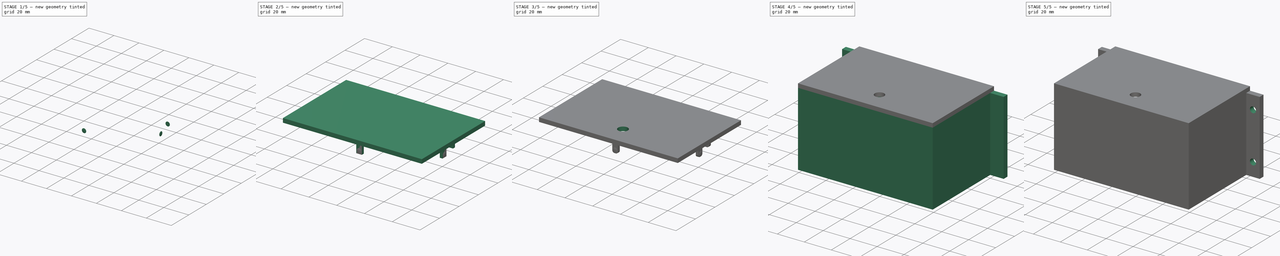
[diagram: build sequence overview — one tinted view per stage of 5, left to right]
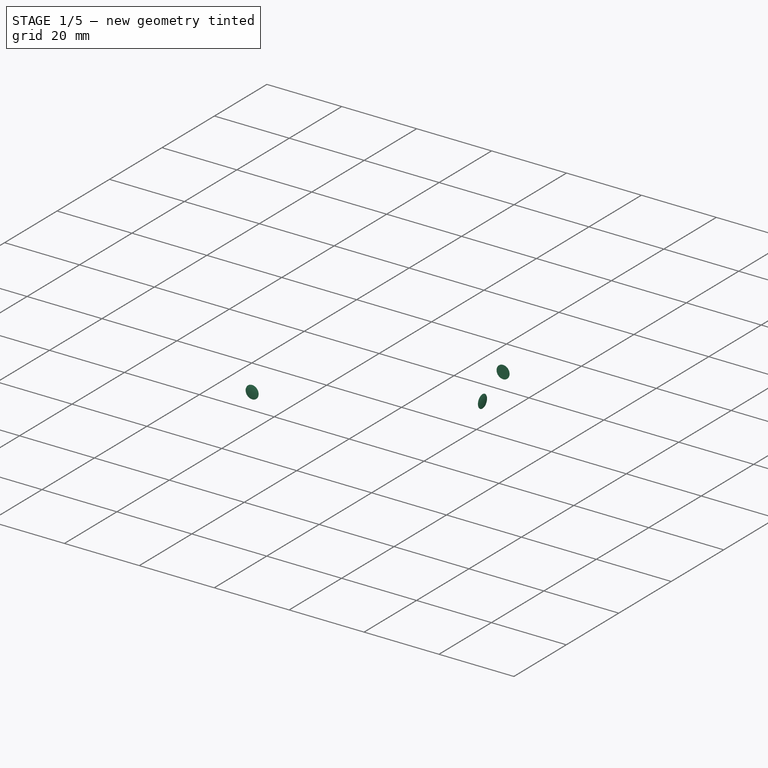
[diagram: stage 1 of 5 — iso view after this stage's code; geometry added in this stage tinted green]
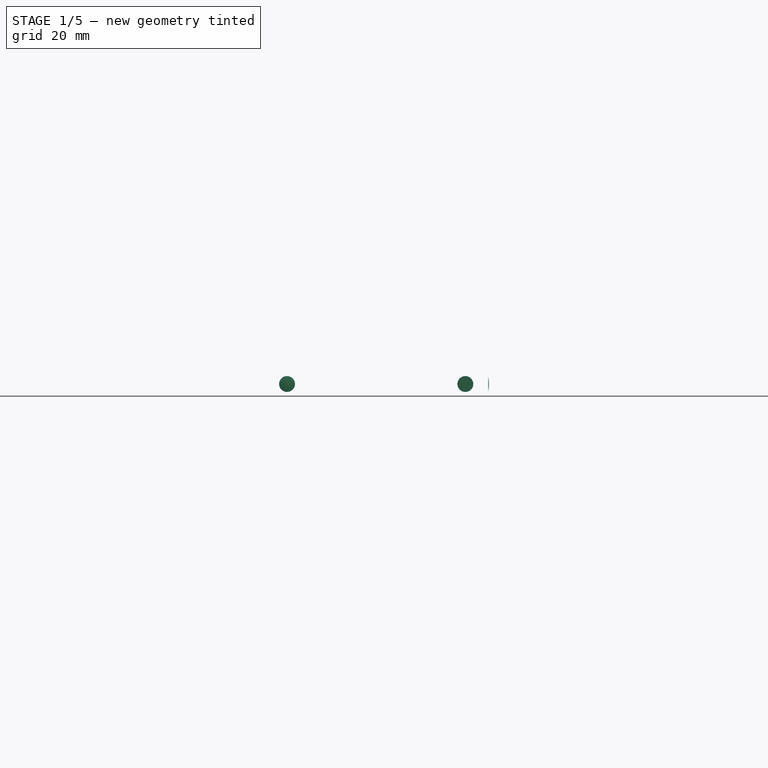
[diagram: stage 1 of 5 — front view after this stage's code; geometry added in this stage tinted green]
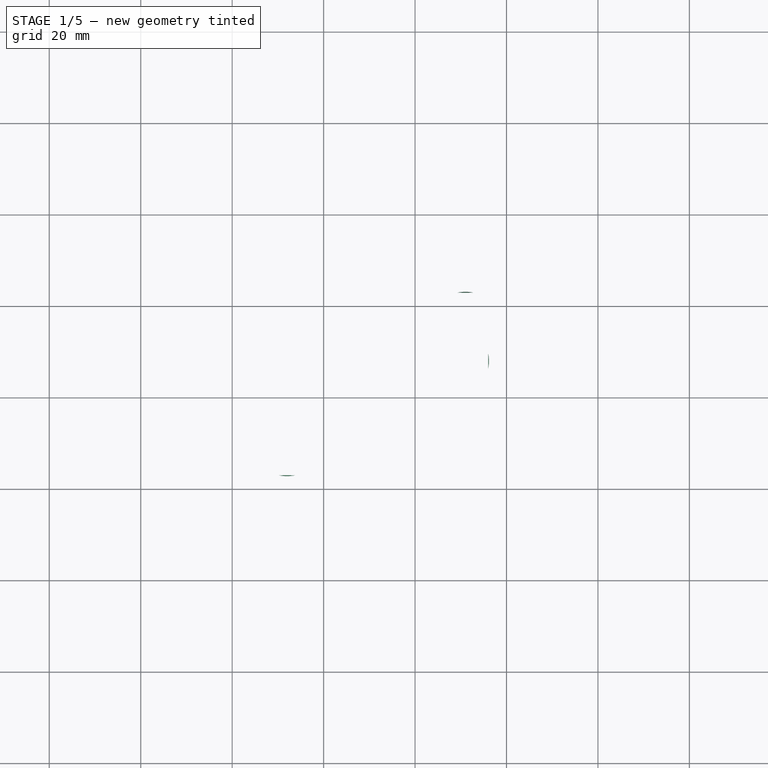
[diagram: stage 1 of 5 — top view after this stage's code; geometry added in this stage tinted green]
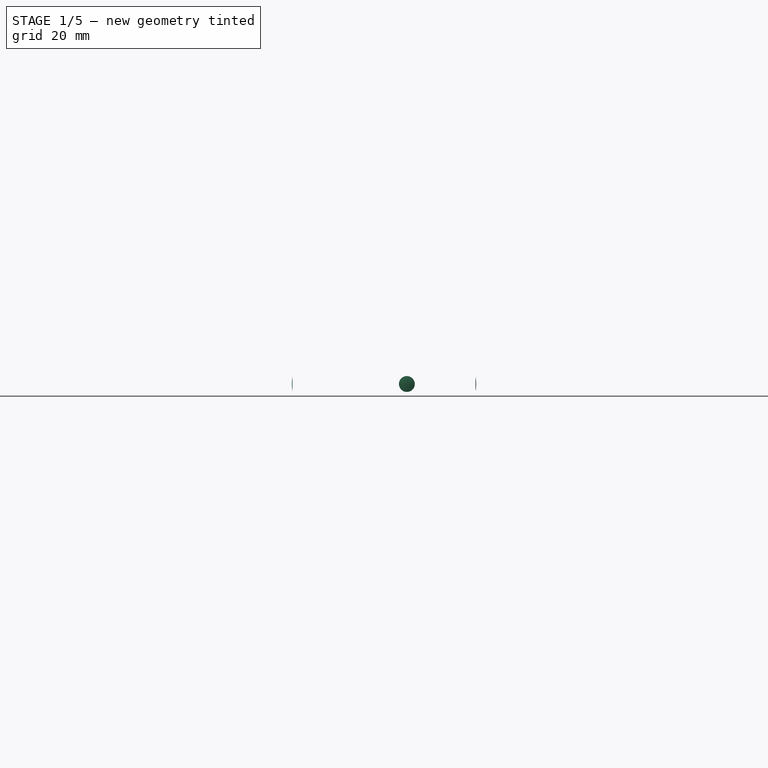
[diagram: stage 1 of 5 — right view after this stage's code; geometry added in this stage tinted green]
FCSTD DOCUMENT  (FreeCAD 0.21R33668 +26 (Git))
Label: TapWaterThermostatBox
License: All rights reserved
LicenseURL: https://en.wikipedia.org/wiki/All_rights_reserved
objects: Sketcher::SketchObject×10, PartDesign::Pad×5, PartDesign::Pocket×4, Part::Sphere×4, PartDesign::Body×2, Spreadsheet::Sheet×1, PartDesign::Hole×1, PartDesign::Plane×1, PartDesign::Boolean×1, PartDesign::Fillet×1
note: 40 computed .brp shape members not serialized (recipe doc carries the construction recipe); baked Part::Feature solids carry a one-line shape summary decoded from their .brp

FEATURE [Part::Sphere] Sphere001
  Angle1 = 80
  Angle2 = 90
  Angle3 = 360
  AttacherType = Attacher::AttachEngine3D
  Placement = pos=(52,-47.1519,44) rot=(0.57735,-0.57735,0.57735;2.0944rad)
  Radius = 10
FEATURE [Part::Sphere] Sphere002
  Angle1 = 80
  Angle2 = 90
  Angle3 = 360
  AttacherType = Attacher::AttachEngine3D
  Placement = pos=(86.1519,-32,44) rot=(0,1,0;1.5708rad)
  Radius = 10
FEATURE [Part::Sphere] Sphere003
  Angle1 = 80
  Angle2 = 90
  Angle3 = 360
  AttacherType = Attacher::AttachEngine3D
  Placement = pos=(91,-26.8481,44) rot=(0.57735,0.57735,0.57735;4.18879rad)
  Radius = 10
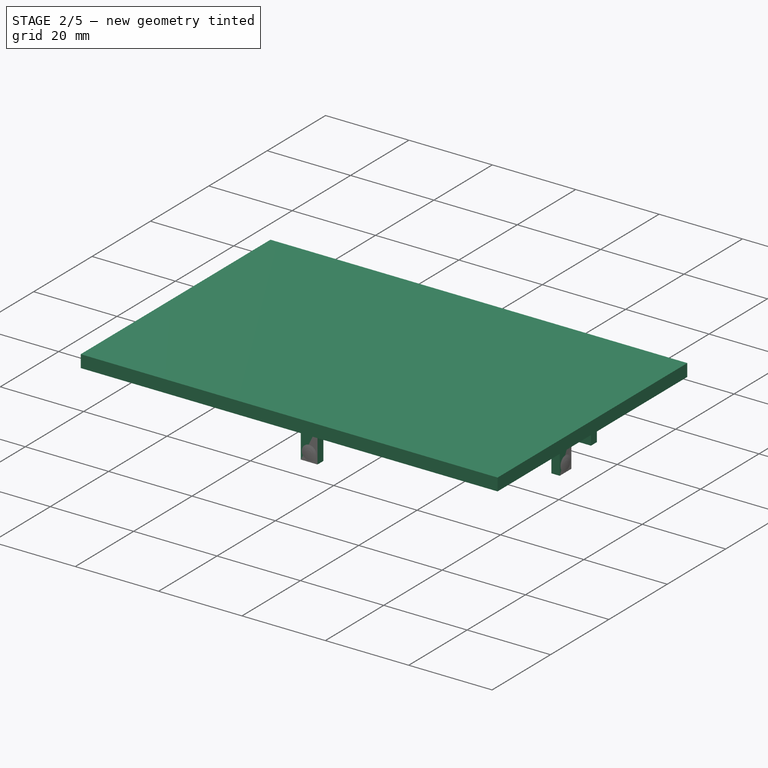
[diagram: stage 2 of 5 — iso view after this stage's code; geometry added in this stage tinted green]
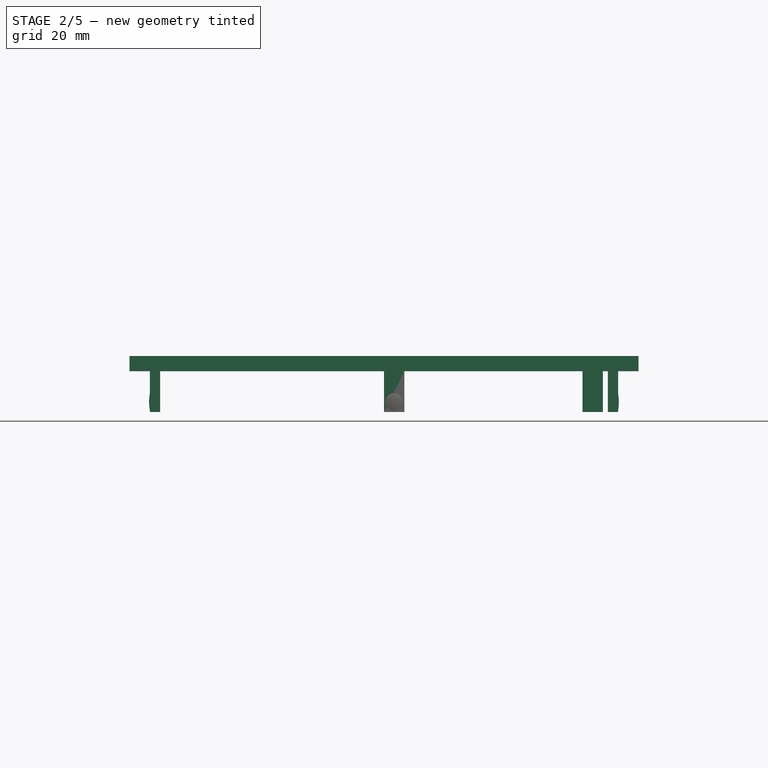
[diagram: stage 2 of 5 — front view after this stage's code; geometry added in this stage tinted green]
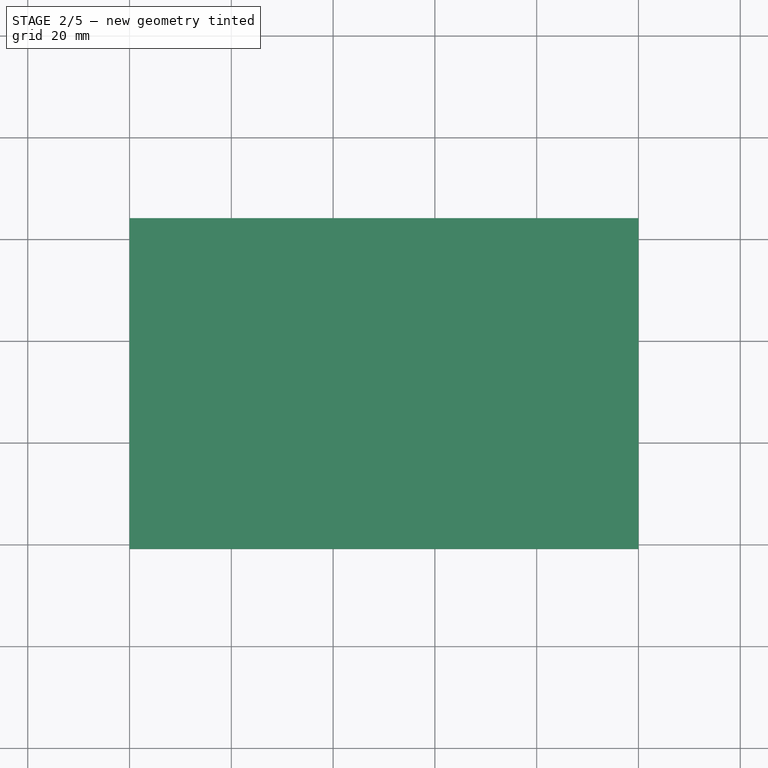
[diagram: stage 2 of 5 — top view after this stage's code; geometry added in this stage tinted green]
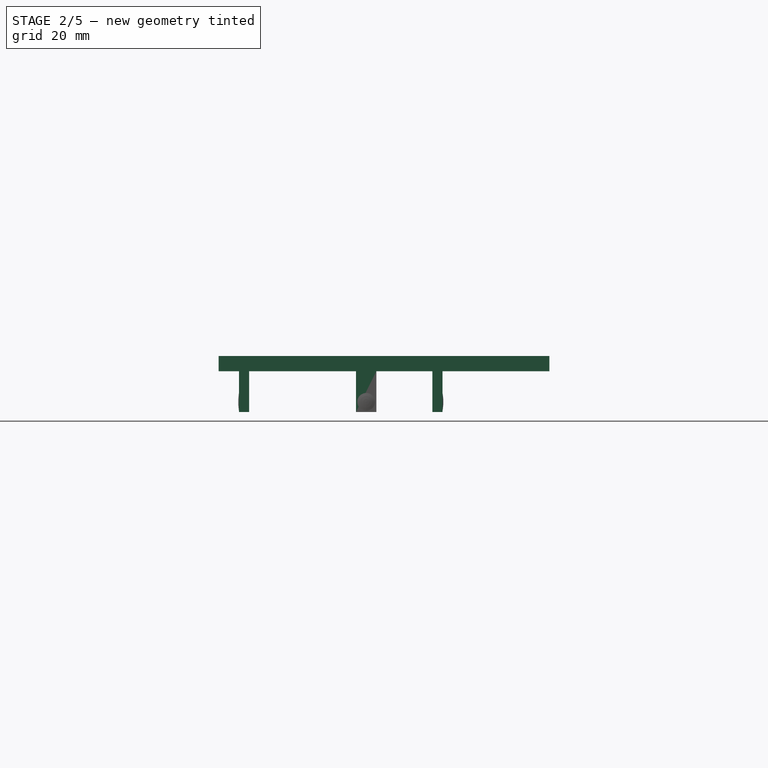
[diagram: stage 2 of 5 — right view after this stage's code; geometry added in this stage tinted green]
FEATURE [PartDesign::Plane] DatumPlane
  AttachmentOffset = pos=(0,0,50) rot=(0,0,1;0rad)
  Length = 60
  MapMode = 2
  Placement = pos=(0,0,50) rot=(0,0,1;0rad)
  ResizeMode = 0
  Support = -> [XY_Plane001]
  Width = 60
  expr: .AttachmentOffset.Base.z = Spreadsheet.box_height
FEATURE [Sketcher::SketchObject] Sketch005
  FullyConstrained = true
  MapMode = 5
  Placement = pos=(0,0,50) rot=(0,0,1;0rad)
  Support = -> [DatumPlane]
  expr: Constraints[10] = Spreadsheet.box_width
  expr: Constraints[11] = Spreadsheet.wall_thickness
  expr: Constraints[9] = Spreadsheet.box_depth
  sketch-geometry (4):
    g0: LineSegment StartX=0 StartY=4 StartZ=0 EndX=100 EndY=4 EndZ=0
    g1: LineSegment StartX=100 StartY=4 StartZ=0 EndX=100 EndY=-61 EndZ=0
    g2: LineSegment StartX=100 StartY=-61 StartZ=0 EndX=0 EndY=-61 EndZ=0
    g3: LineSegment StartX=0 StartY=-61 StartZ=0 EndX=0 EndY=4 EndZ=0
  constraints (12):
    c: Coincident(g0,g1)
    c: Coincident(g1,g2)
    c: Coincident(g2,g3)
    c: Coincident(g3,g0)
    c: Horizontal(g0)
    c: Horizontal(g2)
    c: Vertical(g1)
    c: Vertical(g3)
    c: PointOnObject(g0,g-2)
    c: DistanceY(g1,g1) = 65
    c: DistanceX(g2,g2) = 100
    c: DistanceY(g-1,g0) = 4
FEATURE [PartDesign::Pad] Pad002
  Direction = (0,0,1)
  Length = 3
  Length2 = 10
  Placement = pos=(0,0,50) rot=(0,0,1;0rad)
  Profile = -> Sketch005
  ReferenceAxis = -> Sketch005 [N_Axis]
  Type = 0
  expr: Length = Spreadsheet.lid_thickness
FEATURE [Sketcher::SketchObject] Sketch006
  FullyConstrained = true
  MapMode = 5
  Placement = pos=(0,0,50) rot=(0,0,1;0rad)
  Support = -> [DatumPlane]
  expr: Constraints[40] = Spreadsheet.wall_thickness
  expr: Constraints[43] = Spreadsheet.box_width / 2
  expr: Constraints[44] = Spreadsheet.servo_depth
  expr: Constraints[45] = Spreadsheet.box_width - Spreadsheet.wall_thickness - 3 mm
  expr: Constraints[46] = Spreadsheet.box_depth - Spreadsheet.wall_thickness * 2
  expr: Constraints[47] = Spreadsheet.box_width - Spreadsheet.wall_thickness
  sketch-geometry (16):
    g0: LineSegment StartX=4 StartY=-30 StartZ=0 EndX=6 EndY=-30 EndZ=0
    g1: LineSegment StartX=6 StartY=-30 StartZ=0 EndX=6 EndY=-34 EndZ=0
    g2: LineSegment StartX=6 StartY=-34 StartZ=0 EndX=4 EndY=-34 EndZ=0
    g3: LineSegment StartX=4 StartY=-34 StartZ=0 EndX=4 EndY=-30 EndZ=0
    g4: LineSegment StartX=89 StartY=-17 StartZ=0 EndX=93 EndY=-17 EndZ=0
    g5: LineSegment StartX=93 StartY=-17 StartZ=0 EndX=93 EndY=-19 EndZ=0
    g6: LineSegment StartX=93 StartY=-19 StartZ=0 EndX=89 EndY=-19 EndZ=0
    g7: LineSegment StartX=89 StartY=-19 StartZ=0 EndX=89 EndY=-17 EndZ=0
    g8: LineSegment StartX=96 StartY=-30 StartZ=0 EndX=94 EndY=-30 EndZ=0
    g9: LineSegment StartX=94 StartY=-30 StartZ=0 EndX=94 EndY=-34 EndZ=0
    g10: LineSegment StartX=94 StartY=-34 StartZ=0 EndX=96 EndY=-34 EndZ=0
    g11: LineSegment StartX=96 StartY=-34 StartZ=0 EndX=96 EndY=-30 EndZ=0
    g12: LineSegment StartX=50 StartY=-57 StartZ=0 EndX=54 EndY=-57 EndZ=0
    g13: LineSegment StartX=54 StartY=-57 StartZ=0 EndX=54 EndY=-55 EndZ=0
    g14: LineSegment StartX=54 StartY=-55 StartZ=0 EndX=50 EndY=-55 EndZ=0
    g15: LineSegment StartX=50 StartY=-55 StartZ=0 EndX=50 EndY=-57 EndZ=0
  constraints (48):
    c: Coincident(g0,g1)
    c: Coincident(g1,g2)
    c: Coincident(g2,g3)
    c: Coincident(g3,g0)
    c: Horizontal(g0)
    c: Horizontal(g2)
    c: Vertical(g1)
    c: Vertical(g3)
    c: Coincident(g4,g5)
    c: Coincident(g5,g6)
    c: Coincident(g6,g7)
    c: Coincident(g7,g4)
    c: Horizontal(g4)
    c: Horizontal(g6)
    c: Vertical(g5)
    c: Vertical(g7)
    c: Coincident(g8,g9)
    c: Coincident(g9,g10)
    c: Coincident(g10,g11)
    c: Coincident(g11,g8)
    c: Horizontal(g8)
    c: Horizontal(g10)
    c: Vertical(g9)
    c: Vertical(g11)
    c: Coincident(g12,g13)
    c: Coincident(g13,g14)
    c: Coincident(g14,g15)
    c: Coincident(g15,g12)
    c: Horizontal(g12)
    c: Horizontal(g14)
    c: Vertical(g13)
    c: Vertical(g15)
    c: Equal(g1,g9)
    c: Equal(g9,g6)
    c: Equal(g6,g12)
    c: Equal(g0,g7)
    c: Equal(g7,g8)
    c: Equal(g8,g15)
    c: DistanceY(g1,g1) = 4
    c: DistanceX(g2,g2) = 2
    c: DistanceX(g-1,g0) = 4
    c: DistanceY(g0,g-1) = 30
    c: DistanceY(g8,g-1) = 30
    c: DistanceX(g-1,g14) = 50
    c: DistanceY(g4,g-1) = 17
    c: DistanceX(g-1,g4) = 93
    c: DistanceY(g12,g-1) = 57
    c: DistanceX(g-1,g8) = 96
FEATURE [PartDesign::Pad] Pad003
  BaseFeature = -> Pad002
  Direction = (0,0,1)
  Length = 8
  Length2 = 10
  Placement = pos=(0,0,50) rot=(0,0,1;0rad)
  Profile = -> Sketch006
  ReferenceAxis = -> Sketch006 [N_Axis]
  Reversed = true
  Type = 0
FEATURE [Part::Sphere] Sphere
  Angle1 = 80
  Angle2 = 90
  Angle3 = 360
  AttacherType = Attacher::AttachEngine3D
  Placement = pos=(13.8481,-32,44) rot=(0,-1,0;1.5708rad)
  Radius = 10
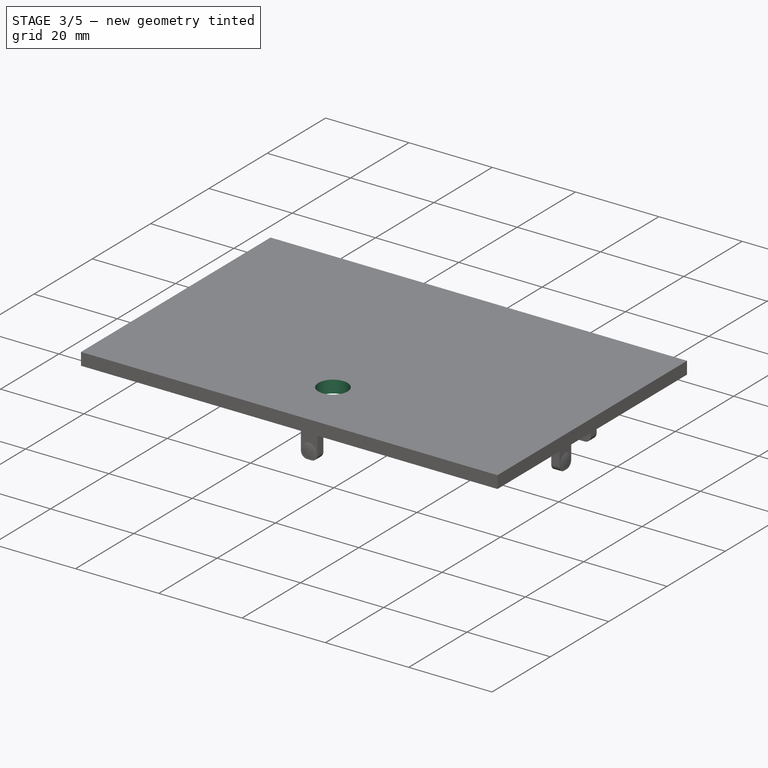
[diagram: stage 3 of 5 — iso view after this stage's code; geometry added in this stage tinted green]
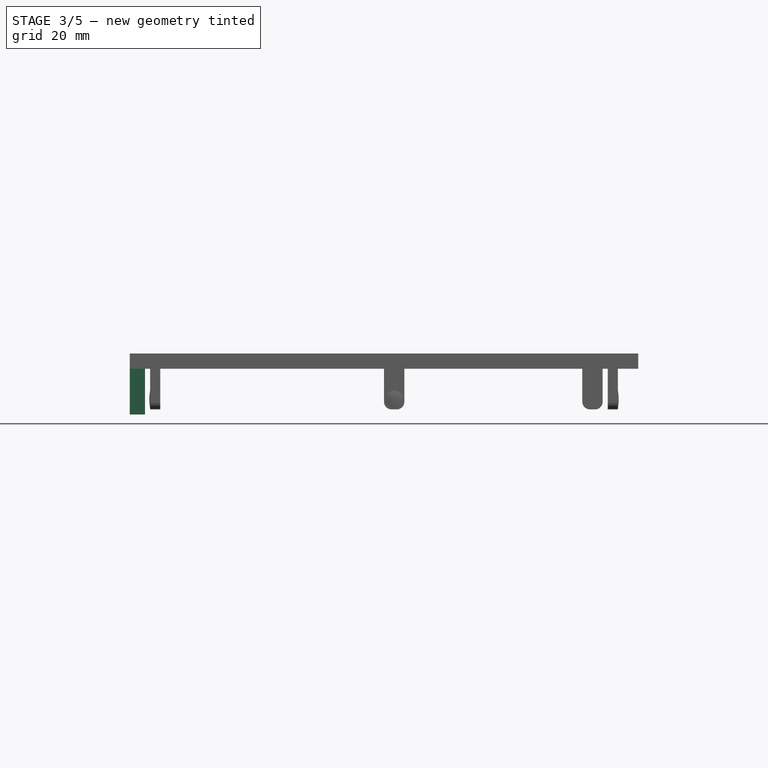
[diagram: stage 3 of 5 — front view after this stage's code; geometry added in this stage tinted green]
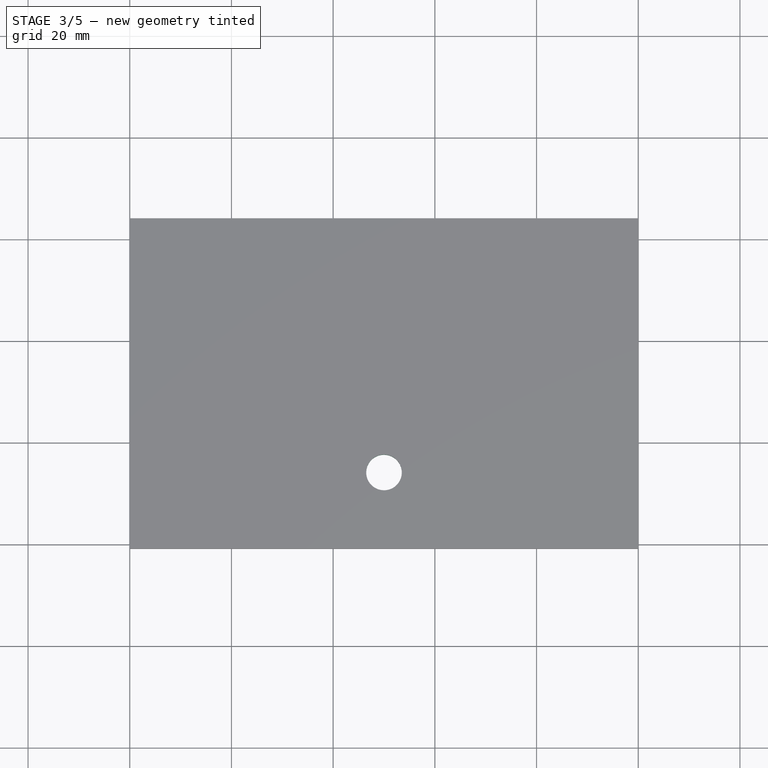
[diagram: stage 3 of 5 — top view after this stage's code; geometry added in this stage tinted green]
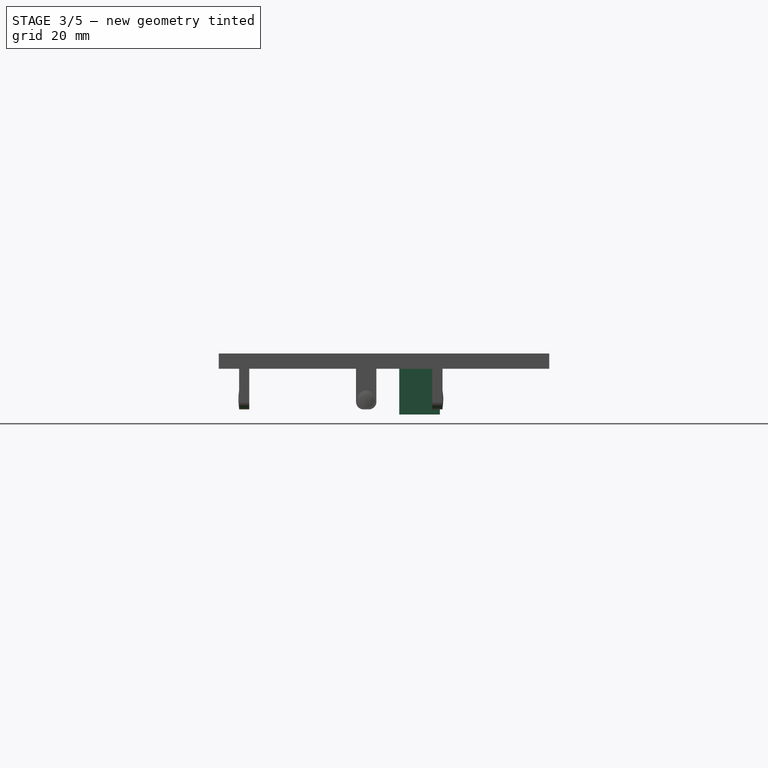
[diagram: stage 3 of 5 — right view after this stage's code; geometry added in this stage tinted green]
FEATURE [Sketcher::SketchObject] Sketch007
  FullyConstrained = true
  MapMode = 5
  Placement = pos=(0,0,50) rot=(0,0,1;0rad)
  Support = -> [DatumPlane]
  expr: Constraints[9] = Spreadsheet.servo_depth + 0.5 mm
  sketch-geometry (4):
    g0: LineSegment StartX=0 StartY=-17.5 StartZ=0 EndX=3 EndY=-17.5 EndZ=0
    g1: LineSegment StartX=3 StartY=-17.5 StartZ=0 EndX=3 EndY=-25.5 EndZ=0
    g2: LineSegment StartX=3 StartY=-25.5 StartZ=0 EndX=0 EndY=-25.5 EndZ=0
    g3: LineSegment StartX=0 StartY=-25.5 StartZ=0 EndX=0 EndY=-17.5 EndZ=0
  constraints (12):
    c: Coincident(g0,g1)
    c: Coincident(g1,g2)
    c: Coincident(g2,g3)
    c: Coincident(g3,g0)
    c: Horizontal(g0)
    c: Horizontal(g2)
    c: Vertical(g1)
    c: Vertical(g3)
    c: PointOnObject(g0,g-2)
    c: DistanceY(g0,g-1) = 17.5
    c: DistanceY(g3,g3) = 8
    c: DistanceX(g2,g2) = 3
FEATURE [PartDesign::Pad] Pad004
  BaseFeature = -> Pad003
  Direction = (0,0,1)
  Length = 9
  Length2 = 10
  Placement = pos=(0,0,50) rot=(0,0,1;0rad)
  Profile = -> Sketch007
  ReferenceAxis = -> Sketch007 [N_Axis]
  Reversed = true
  Type = 0
FEATURE [PartDesign::Boolean] Boolean
  BaseFeature = -> Pad004
  Group = -> [Sphere,Sphere001,Sphere002,Sphere003]
  Type = 0
FEATURE [PartDesign::Fillet] Fillet
  Base = -> Boolean [Edge62,Edge68,Edge77,Edge71,Edge58,Edge56,Edge49,Edge47]
  BaseFeature = -> Boolean
  Radius = 1.5
  SupportTransform = false
  UseAllEdges = false
FEATURE [PartDesign::Body] Body  label="Box"
  Group = -> [Sketch,Pad,Sketch001,Pad001,Sketch002,Pocket,Sketch003,Pocket001,Sketch004,Hole,Sketch008,Pocket002]
  Origin = -> Origin
  Tip = -> Pocket002
FEATURE [Sketcher::SketchObject] Sketch009
  FullyConstrained = true
  MapMode = 5
  Placement = pos=(0,0,50) rot=(0,0,1;0rad)
  Support = -> [DatumPlane]
  expr: Constraints[0] = Spreadsheet.box_width / 2
  expr: Constraints[1] = Spreadsheet.box_depth - Spreadsheet.wall_thickness - 15 mm
  sketch-geometry (1):
    g0: Circle CenterX=50 CenterY=-46 CenterZ=0 NormalX=0 NormalY=0 NormalZ=1 AngleXU=0 Radius=3.5
  constraints (3):
    c: DistanceX(g-1,g0) = 50
    c: DistanceY(g0,g-1) = 46
    c: Diameter(g0) = 7
FEATURE [PartDesign::Pocket] Pocket003
  BaseFeature = -> Fillet
  Direction = (0,0,-1)
  Length = 3
  Length2 = 5
  Profile = -> Sketch009
  ReferenceAxis = -> Sketch009 [N_Axis]
  Reversed = true
  Type = 0
  expr: Length = Spreadsheet.lid_thickness
FEATURE [PartDesign::Body] Body001  label="Lid"
  Group = -> [DatumPlane,Sketch005,Pad002,Sketch006,Pad003,Sketch007,Pad004,Boolean,Fillet,Sketch009,Pocket003]
  Origin = -> Origin001
  Tip = -> Pocket003
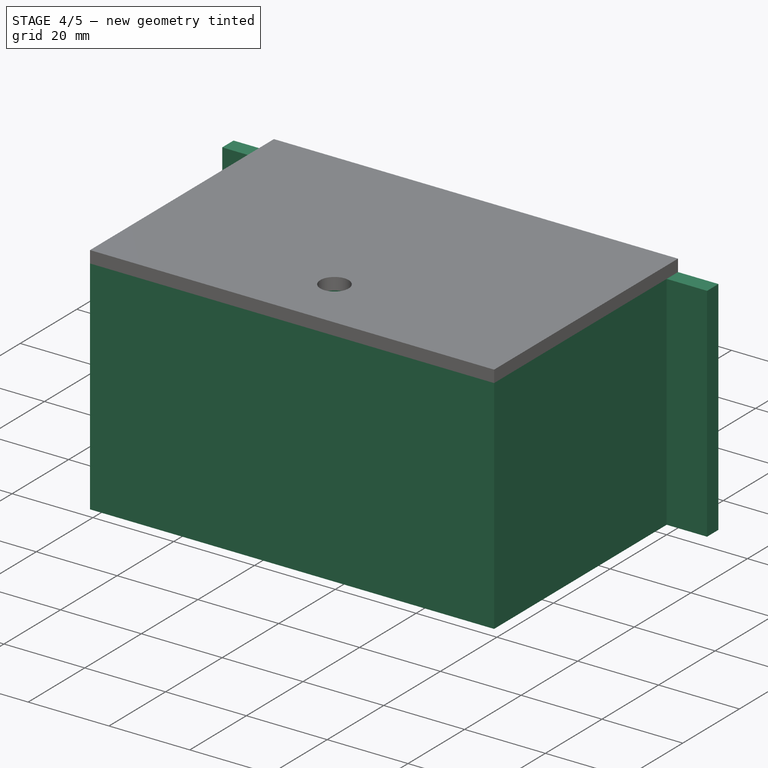
[diagram: stage 4 of 5 — iso view after this stage's code; geometry added in this stage tinted green]
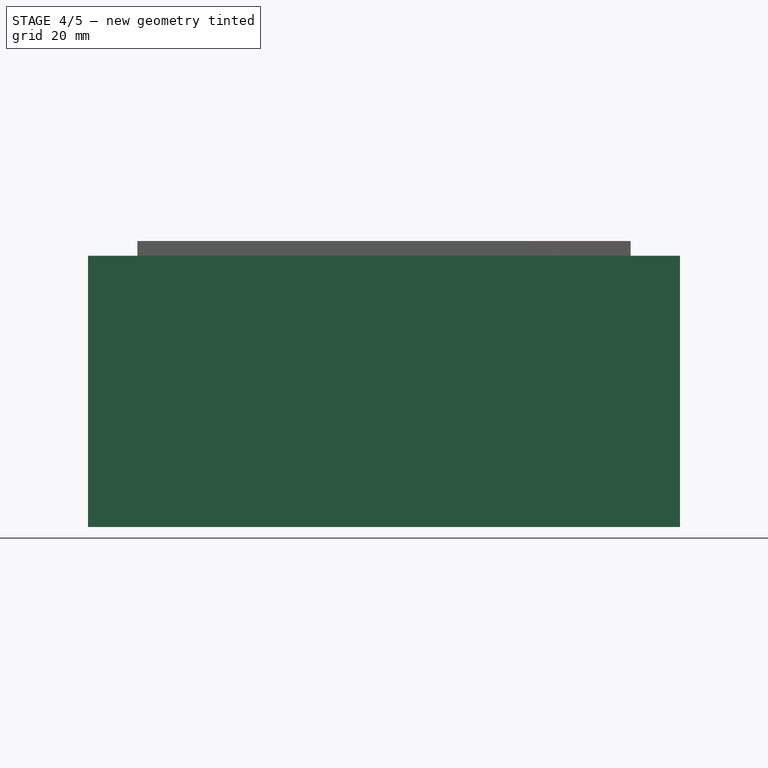
[diagram: stage 4 of 5 — front view after this stage's code; geometry added in this stage tinted green]
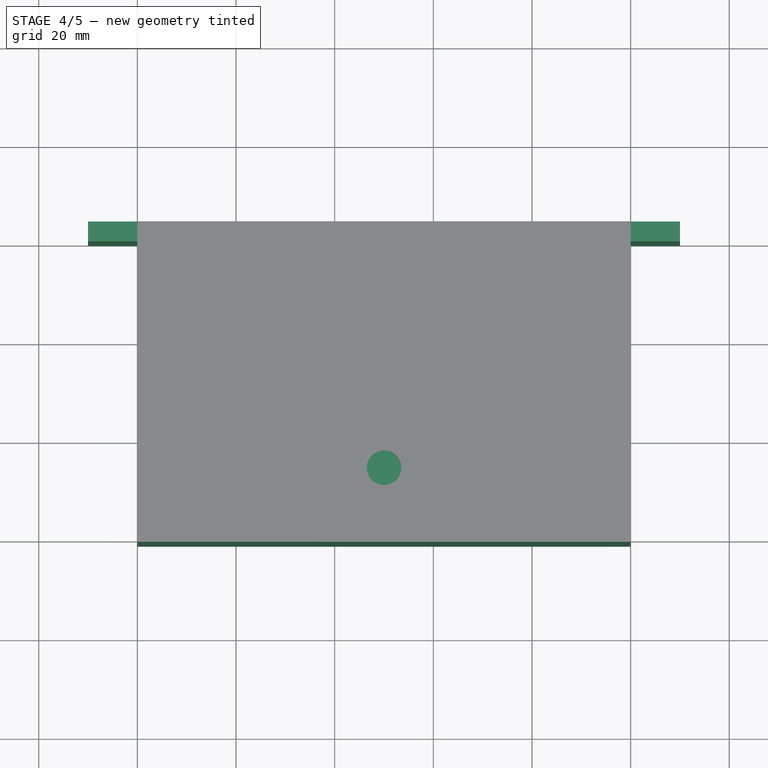
[diagram: stage 4 of 5 — top view after this stage's code; geometry added in this stage tinted green]
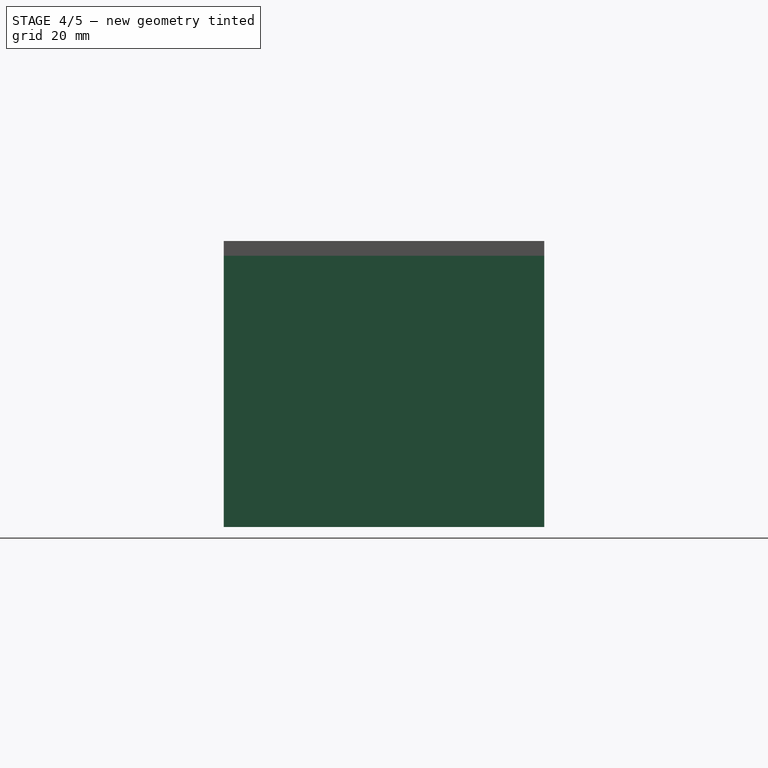
[diagram: stage 4 of 5 — right view after this stage's code; geometry added in this stage tinted green]
FEATURE [Sketcher::SketchObject] Sketch
  FullyConstrained = true
  MapMode = 5
  Support = -> [XY_Plane]
  expr: Constraints[18] = Spreadsheet.wall_thickness
  expr: Constraints[19] = Spreadsheet.box_width
  expr: Constraints[20] = Spreadsheet.ear_width
  expr: Constraints[22] = Spreadsheet.box_depth
  sketch-geometry (8):
    g0: LineSegment StartX=0 StartY=0 StartZ=0 EndX=-10 EndY=0 EndZ=0
    g1: LineSegment StartX=-10 StartY=0 StartZ=0 EndX=-10 EndY=4 EndZ=0
    g2: LineSegment StartX=-10 StartY=4 StartZ=0 EndX=110 EndY=4 EndZ=0
    g3: LineSegment StartX=110 StartY=4 StartZ=0 EndX=110 EndY=0 EndZ=0
    g4: LineSegment StartX=110 StartY=0 StartZ=0 EndX=100 EndY=0 EndZ=0
    g5: LineSegment StartX=100 StartY=0 StartZ=0 EndX=100 EndY=-61 EndZ=0
    g6: LineSegment StartX=100 StartY=-61 StartZ=0 EndX=0 EndY=-61 EndZ=0
    g7: LineSegment StartX=0 StartY=-61 StartZ=0 EndX=0 EndY=0 EndZ=0
  constraints (23):
    c: Coincident(g-1,g0)
    c: PointOnObject(g0,g-1)
    c: Coincident(g0,g1)
    c: Vertical(g1)
    c: Coincident(g1,g2)
    c: Horizontal(g2)
    c: Coincident(g2,g3)
    c: PointOnObject(g3,g-1)
    c: Vertical(g3)
    c: Coincident(g3,g4)
    c: PointOnObject(g4,g-1)
    c: Coincident(g4,g5)
    c: Vertical(g5)
    c: Coincident(g5,g6)
    c: PointOnObject(g6,g-2)
    c: Horizontal(g6)
    c: Coincident(g6,g7)
    c: Coincident(g7,g0)
    c: DistanceY(g1,g1) = 4
    c: DistanceX(g6,g6) = 100
    c: DistanceX(g0,g0) = 10
    c: Equal(g0,g4)
    c: DistanceY(g5,g2) = 65
FEATURE [Spreadsheet::Sheet] Spreadsheet
  cells = A1='wall_thickness; B1(wall_thickness)==4 mm; A2='box_width; B2(box_width)==100 mm; A3='box_depth; B3(box_depth)==65 mm; A4='box_height; B4(box_height)==50 mm; A5='box_bottom_thickness; B5(box_bottom_thickness)==5 mm; A6='ear_width; B6(ear_width)==10 mm; A7='servo_depth; B7(servo_depth)==17 mm; A8='servo_screw_x; B8(servo_screw_x)==50 mm; A9='servo_screw_y; B9(servo_screw_y)==10 mm; A10='servo_height; B10(servo_height)==20 mm; A11='servo_screw_diam; B11(servo_screw_diam)==3 mm; A12='lid_thickness; B12(lid_thickness)==3 mm
FEATURE [PartDesign::Pad] Pad
  Direction = (0,0,1)
  Length = 5
  Length2 = 10
  Profile = -> Sketch
  ReferenceAxis = -> Sketch [N_Axis]
  Reversed = true
  Type = 0
  expr: Length = Spreadsheet.box_bottom_thickness
FEATURE [Sketcher::SketchObject] Sketch001
  FullyConstrained = true
  MapMode = 5
  Support = -> [XY_Plane]
  expr: Constraints[40] = Spreadsheet.servo_depth
  expr: Constraints[42] = Spreadsheet.wall_thickness
  expr: Constraints[46] = Spreadsheet.ear_width
  expr: Constraints[50] = Spreadsheet.wall_thickness
  expr: Constraints[51] = Spreadsheet.wall_thickness
  expr: Constraints[52] = Spreadsheet.wall_thickness
  expr: Constraints[53] = Spreadsheet.box_width
  expr: Constraints[54] = Spreadsheet.box_depth
  sketch-geometry (20):
    g0: LineSegment StartX=0 StartY=0 StartZ=0 EndX=-10 EndY=0 EndZ=0
    g1: LineSegment StartX=-10 StartY=0 StartZ=0 EndX=-10 EndY=4 EndZ=0
    g2: LineSegment StartX=-10 StartY=4 StartZ=0 EndX=4 EndY=4 EndZ=0
    g3: LineSegment StartX=4 StartY=4 StartZ=0 EndX=4 EndY=-13 EndZ=0
    g4: LineSegment StartX=4 StartY=-13 StartZ=0 EndX=45 EndY=-13 EndZ=0
    g5: LineSegment StartX=45 StartY=-13 StartZ=0 EndX=45 EndY=-17 EndZ=0
    g6: LineSegment StartX=45 StartY=-17 StartZ=0 EndX=4 EndY=-17 EndZ=0
    g7: LineSegment StartX=4 StartY=-17 StartZ=0 EndX=4 EndY=-57 EndZ=0
    g8: LineSegment StartX=4 StartY=-57 StartZ=0 EndX=96 EndY=-57 EndZ=0
    g9: LineSegment StartX=96 StartY=-57 StartZ=0 EndX=96 EndY=-17 EndZ=0
    g10: LineSegment StartX=96 StartY=-17 StartZ=0 EndX=86 EndY=-17 EndZ=0
    g11: LineSegment StartX=86 StartY=-17 StartZ=0 EndX=86 EndY=-13 EndZ=0
    g12: LineSegment StartX=86 StartY=-13 StartZ=0 EndX=96 EndY=-13 EndZ=0
    g13: LineSegment StartX=96 StartY=-13 StartZ=0 EndX=96 EndY=4 EndZ=0
    g14: LineSegment StartX=96 StartY=4 StartZ=0 EndX=110 EndY=4 EndZ=0
    g15: LineSegment StartX=110 StartY=4 StartZ=0 EndX=110 EndY=0 EndZ=0
    g16: LineSegment StartX=110 StartY=0 StartZ=0 EndX=100 EndY=0 EndZ=0
    g17: LineSegment StartX=100 StartY=0 StartZ=0 EndX=100 EndY=-61 EndZ=0
    g18: LineSegment StartX=100 StartY=-61 StartZ=0 EndX=0 EndY=-61 EndZ=0
    g19: LineSegment StartX=0 StartY=-61 StartZ=0 EndX=0 EndY=0 EndZ=0
  constraints (59):
    c: Coincident(g-1,g0)
    c: PointOnObject(g0,g-1)
    c: Coincident(g0,g1)
    c: Coincident(g1,g2)
    c: Horizontal(g2)
    c: Coincident(g2,g3)
    c: Vertical(g3)
    c: Coincident(g3,g4)
    c: Horizontal(g4)
    c: Coincident(g4,g5)
    c: Vertical(g5)
    c: Coincident(g5,g6)
    c: Horizontal(g6)
    c: Coincident(g6,g7)
    c: Vertical(g7)
    c: Coincident(g7,g8)
    c: Horizontal(g8)
    c: Coincident(g8,g9)
    c: Vertical(g9)
    c: Coincident(g9,g10)
    c: Horizontal(g10)
    c: Coincident(g10,g11)
    c: Coincident(g11,g12)
    c: Horizontal(g12)
    c: Coincident(g12,g13)
    c: Vertical(g13)
    c: Coincident(g13,g14)
    c: Horizontal(g14)
    c: Coincident(g14,g15)
    c: PointOnObject(g15,g-1)
    c: Coincident(g15,g16)
    c: PointOnObject(g16,g-1)
    c: Coincident(g16,g17)
    c: Vertical(g17)
    c: Coincident(g17,g18)
    c: PointOnObject(g18,g-2)
    c: Horizontal(g18)
    c: Coincident(g18,g19)
    c: Coincident(g19,g0)
    c: Vertical(g11)
    c: DistanceY(g13,g13) = 17
    c: Equal(g13,g3)
    c: DistanceY(g1,g1) = 4
    c: Vertical(g1)
    c: Equal(g1,g15)
    c: Vertical(g15)
    c: DistanceX(g0,g0) = 10
    c: Equal(g0,g16)
    c: Equal(g5,g1)
    c: Equal(g1,g11)
    c: DistanceX(g18,g7) = 4
    c: DistanceX(g8,g17) = 4
    c: DistanceY(g18,g7) = 4
    c: DistanceX(g18,g18) = 100
    c: DistanceY(g17,g14) = 65
    c: DistanceX(g12,g12) = 10
    c: Equal(g4,g6)
    c: Equal(g12,g10)
    c: DistanceX(g4,g11) = 41
FEATURE [PartDesign::Pad] Pad001
  BaseFeature = -> Pad
  Direction = (0,0,1)
  Length = 50
  Length2 = 10
  Profile = -> Sketch001
  ReferenceAxis = -> Sketch001 [N_Axis]
  Type = 0
  expr: Length = Spreadsheet.box_height
FEATURE [Sketcher::SketchObject] Sketch002
  FullyConstrained = true
  MapMode = 5
  Placement = pos=(0,0,0) rot=(0.57735,0.57735,0.57735;2.0944rad)
  Support = -> [YZ_Plane]
  expr: Constraints[11] = Spreadsheet.box_height
  expr: Constraints[12] = Spreadsheet.servo_depth
  sketch-geometry (4):
    g0: LineSegment StartX=-26 StartY=50 StartZ=0 EndX=-17 EndY=50 EndZ=0
    g1: LineSegment StartX=-26 StartY=50 StartZ=0 EndX=-26 EndY=35 EndZ=0
    g2: LineSegment StartX=-17 StartY=50 StartZ=0 EndX=-17 EndY=35 EndZ=0
    g3: ArcOfCircle CenterX=-21.5 CenterY=35 CenterZ=0 NormalX=0 NormalY=0 NormalZ=1 AngleXU=0 Radius=4.5 StartAngle=3.14159 EndAngle=6.28319
  constraints (13):
    c: Horizontal(g0)
    c: Coincident(g1,g0)
    c: Vertical(g1)
    c: Coincident(g2,g0)
    c: Vertical(g2)
    c: Coincident(g3,g2)
    c: Coincident(g3,g1)
    c: Horizontal(g1,g3)
    c: Horizontal(g3,g2)
    c: DistanceX(g0,g0) = 9
    c: DistanceY(g1,g1) = 15
    c: DistanceY(g-1,g0) = 50
    c: DistanceX(g2,g-1) = 17
FEATURE [PartDesign::Pocket] Pocket
  BaseFeature = -> Pad001
  Direction = (-1,2e-16,-3e-16)
  Length = 4
  Length2 = 5
  Profile = -> Sketch002
  ReferenceAxis = -> Sketch002 [N_Axis]
  Reversed = true
  Type = 0
  expr: Length = Spreadsheet.wall_thickness
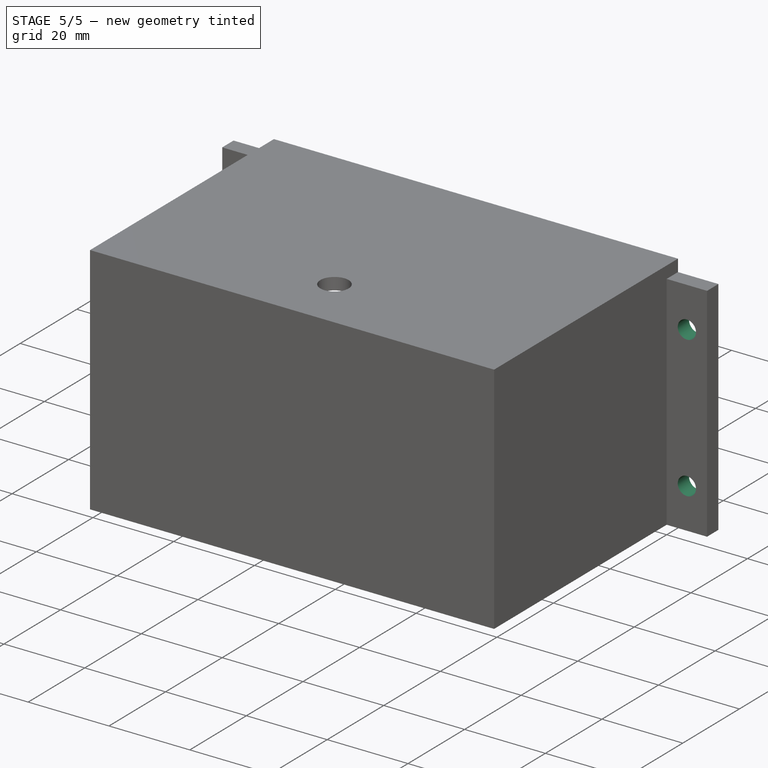
[diagram: stage 5 of 5 — iso view after this stage's code; geometry added in this stage tinted green]
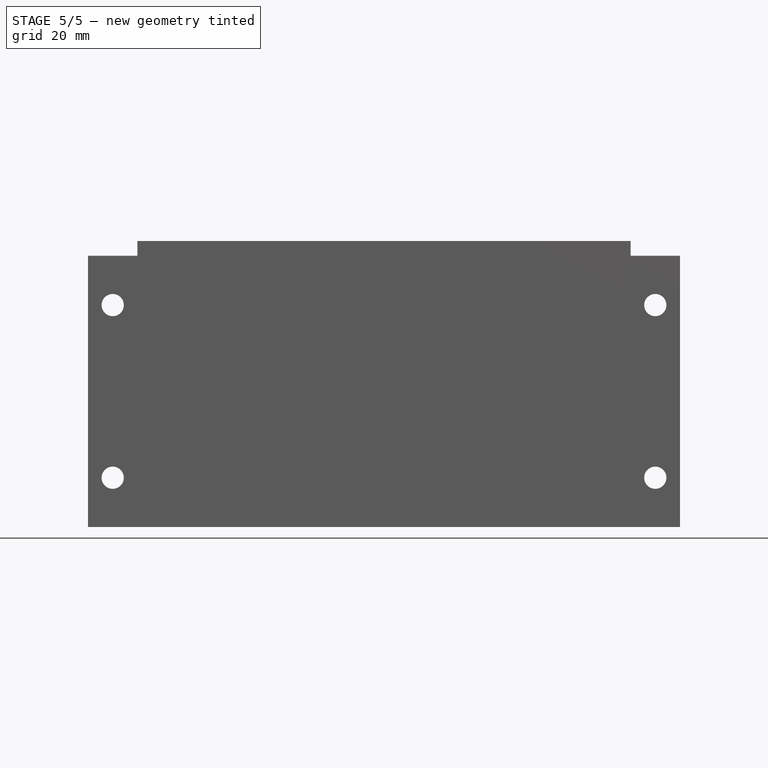
[diagram: stage 5 of 5 — front view after this stage's code; geometry added in this stage tinted green]
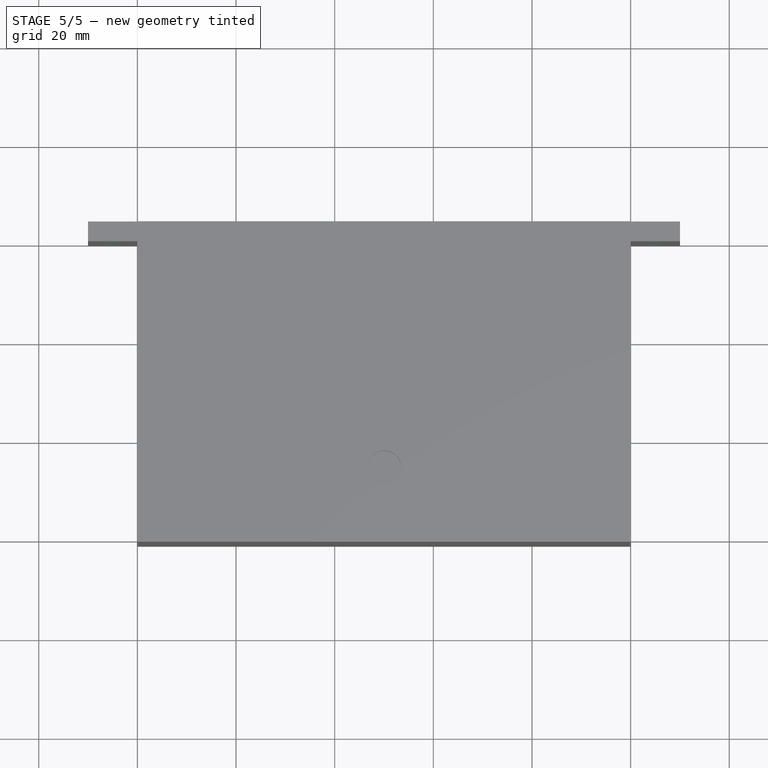
[diagram: stage 5 of 5 — top view after this stage's code; geometry added in this stage tinted green]
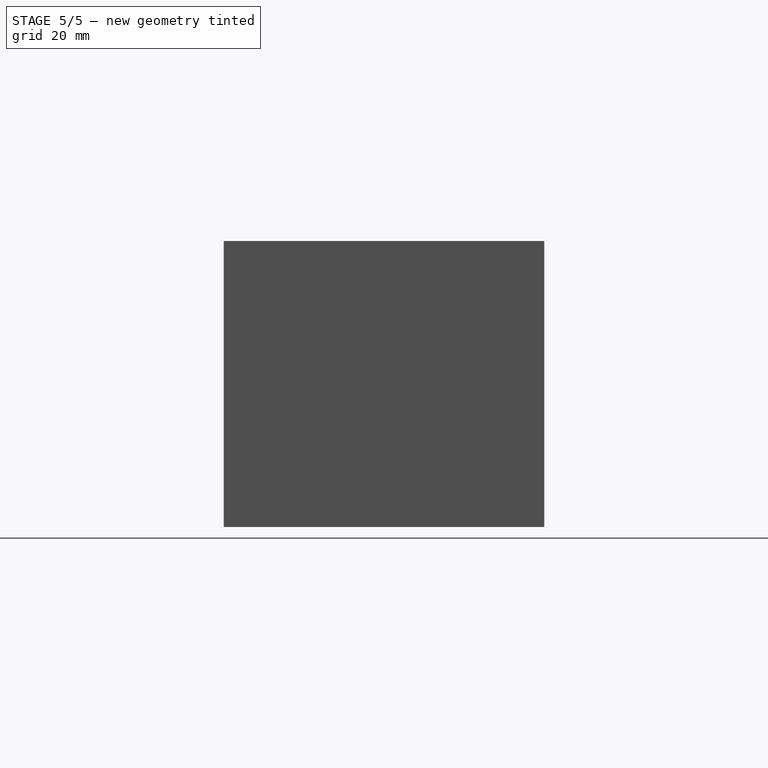
[diagram: stage 5 of 5 — right view after this stage's code; geometry added in this stage tinted green]
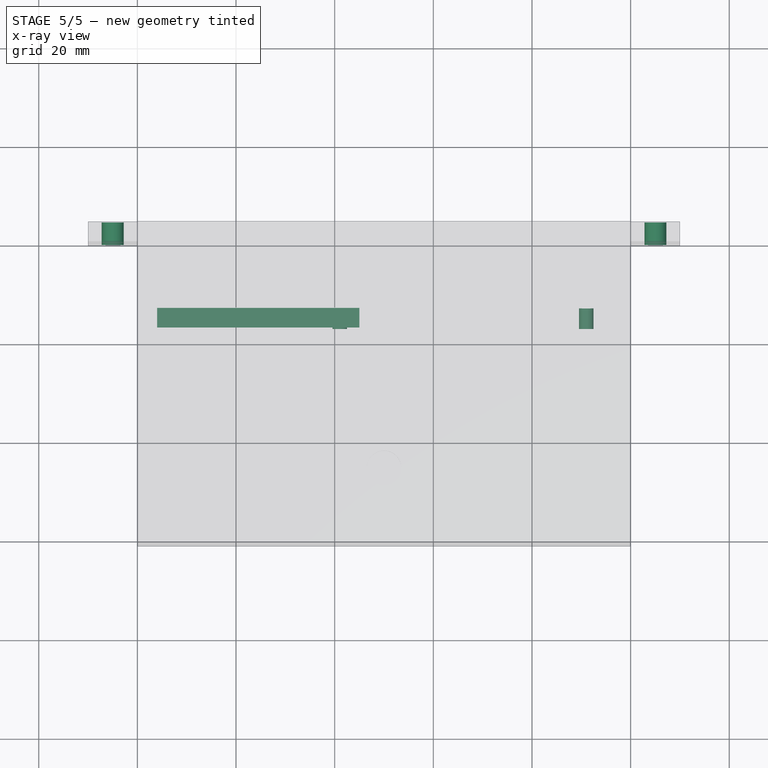
[diagram: stage 5 of 5 — x-ray composite at the top view; earlier geometry ghosted, this stage's added geometry solid]
FEATURE [Sketcher::SketchObject] Sketch003
  FullyConstrained = true
  MapMode = 5
  Placement = pos=(0,0,0) rot=(1,0,0;1.5708rad)
  Support = -> [XZ_Plane]
  expr: Constraints[11] = Spreadsheet.box_width - Spreadsheet.wall_thickness - 10 mm / 2
  expr: Constraints[7] = Spreadsheet.servo_screw_x
  expr: Constraints[8] = Spreadsheet.servo_screw_y
  expr: Constraints[9] = (Spreadsheet.servo_height - Spreadsheet.servo_screw_y) / 2
  sketch-geometry (4):
    g0: Circle CenterX=41 CenterY=15 CenterZ=0 NormalX=0 NormalY=0 NormalZ=1 AngleXU=0 Radius=1.5
    g1: Circle CenterX=41 CenterY=5 CenterZ=0 NormalX=0 NormalY=0 NormalZ=1 AngleXU=0 Radius=1.5
    g2: Circle CenterX=91 CenterY=15 CenterZ=0 NormalX=0 NormalY=0 NormalZ=1 AngleXU=0 Radius=1.5
    g3: Circle CenterX=91 CenterY=5 CenterZ=0 NormalX=0 NormalY=0 NormalZ=1 AngleXU=0 Radius=1.5
  constraints (12):
    c: Horizontal(g1,g3)
    c: Vertical(g0,g1)
    c: Vertical(g2,g3)
    c: Horizontal(g2,g0)
    c: Equal(g0,g2)
    c: Equal(g2,g3)
    c: Equal(g3,g1)
    c: DistanceX(g0,g2) = 50
    c: DistanceY(g1,g0) = 10
    c: DistanceY(g-1,g1) = 5
    c: Diameter(g0) = 3
    c: DistanceX(g-1,g3) = 91
FEATURE [PartDesign::Pocket] Pocket001
  BaseFeature = -> Pocket
  Direction = (0,1,2e-16)
  Length = 17
  Length2 = 5
  Profile = -> Sketch003
  ReferenceAxis = -> Sketch003 [N_Axis]
  Reversed = true
  Type = 0
  expr: Length = Spreadsheet.servo_depth
FEATURE [Sketcher::SketchObject] Sketch004
  FullyConstrained = true
  MapMode = 5
  Placement = pos=(0,0,0) rot=(1,0,0;1.5708rad)
  Support = -> [XZ_Plane]
  expr: Constraints[10] = 10 mm - Spreadsheet.box_bottom_thickness
  expr: Constraints[11] = Spreadsheet.box_height - 10 mm
  expr: Constraints[8] = Spreadsheet.ear_width / 2
  expr: Constraints[9] = Spreadsheet.box_width + Spreadsheet.ear_width
  sketch-geometry (4):
    g0: Circle CenterX=-5 CenterY=40 CenterZ=0 NormalX=0 NormalY=0 NormalZ=1 AngleXU=0 Radius=2
    g1: Circle CenterX=-5 CenterY=5 CenterZ=0 NormalX=0 NormalY=0 NormalZ=1 AngleXU=0 Radius=2
    g2: Circle CenterX=105 CenterY=40 CenterZ=0 NormalX=0 NormalY=0 NormalZ=1 AngleXU=0 Radius=2
    g3: Circle CenterX=105 CenterY=5 CenterZ=0 NormalX=0 NormalY=0 NormalZ=1 AngleXU=0 Radius=2
  constraints (12):
    c: Equal(g0,g2)
    c: Equal(g2,g3)
    c: Equal(g3,g1)
    c: Diameter(g0) = 4
    c: Vertical(g0,g1)
    c: Vertical(g2,g3)
    c: Horizontal(g2,g0)
    c: Horizontal(g1,g3)
    c: DistanceX(g1,g-1) = 5
    c: DistanceX(g1,g3) = 110
    c: DistanceY(g-1,g1) = 5
    c: DistanceY(g-1,g0) = 40
FEATURE [PartDesign::Hole] Hole
  BaseFeature = -> Pocket001
  CustomThreadClearance = 0
  Depth = 25
  DepthType = 0
  Diameter = 4.5
  DrillForDepth = false
  DrillPoint = 1
  DrillPointAngle = 118
  HoleCutCountersinkAngle = 90
  HoleCutCustomValues = false
  HoleCutDepth = 0
  HoleCutDiameter = 6.1
  HoleCutType = 0
  ModelThread = false
  Profile = -> Sketch004
  Tapered = false
  TaperedAngle = 90
  ThreadClass = 0
  ThreadDepth = 25
  ThreadDepthType = 0
  ThreadDirection = 0
  ThreadFit = 0
  ThreadSize = 11
  ThreadType = 1
  Threaded = false
  UseCustomThreadClearance = false
FEATURE [Sketcher::SketchObject] Sketch008
  FullyConstrained = true
  MapMode = 5
  Placement = pos=(0,-13,0) rot=(0,0.707107,0.707107;3.14159rad)
  Support = -> [Hole]
  expr: Constraints[10] = Spreadsheet.box_height
  expr: Constraints[8] = Spreadsheet.wall_thickness
  expr: Constraints[9] = Spreadsheet.servo_height
  sketch-geometry (4):
    g0: LineSegment StartX=-49 StartY=50 StartZ=0 EndX=-4 EndY=50 EndZ=0
    g1: LineSegment StartX=-4 StartY=50 StartZ=0 EndX=-4 EndY=20 EndZ=0
    g2: LineSegment StartX=-4 StartY=20 StartZ=0 EndX=-49 EndY=20 EndZ=0
    g3: LineSegment StartX=-49 StartY=20 StartZ=0 EndX=-49 EndY=50 EndZ=0
  constraints (12):
    c: Coincident(g0,g1)
    c: Coincident(g1,g2)
    c: Coincident(g2,g3)
    c: Coincident(g3,g0)
    c: Horizontal(g0)
    c: Horizontal(g2)
    c: Vertical(g1)
    c: Vertical(g3)
    c: DistanceX(g1,g-1) = 4
    c: DistanceY(g-1,g1) = 20
    c: DistanceY(g-1,g0) = 50
    c: DistanceX(g0,g0) = 45
FEATURE [PartDesign::Pocket] Pocket002
  BaseFeature = -> Hole
  Direction = (0,-1,2e-16)
  Length = 4
  Length2 = 5
  Profile = -> Sketch008
  ReferenceAxis = -> Sketch008 [N_Axis]
  Type = 0
  expr: Length = Spreadsheet.wall_thickness
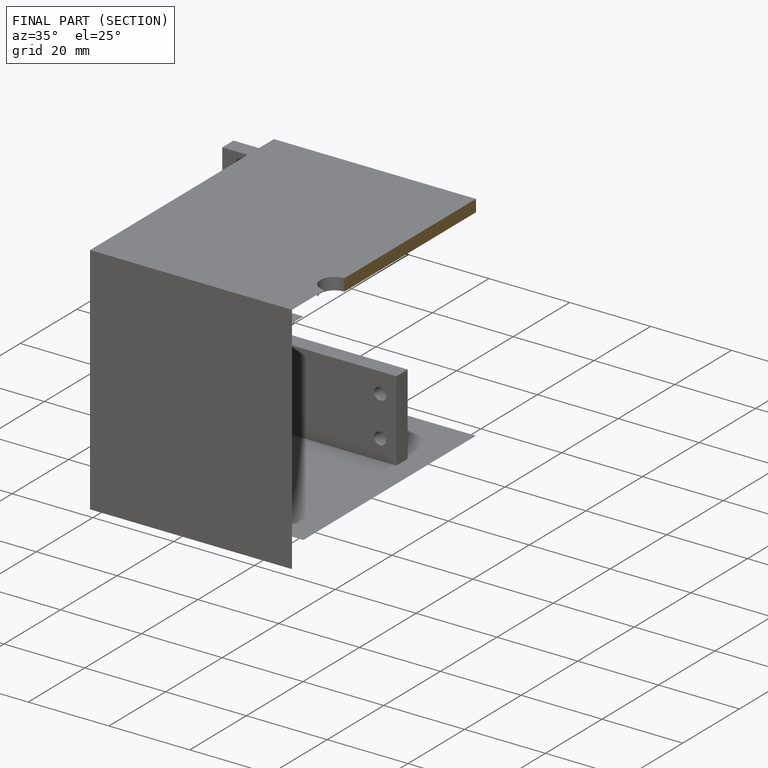
[diagram: finished part — half-section view (interior)]
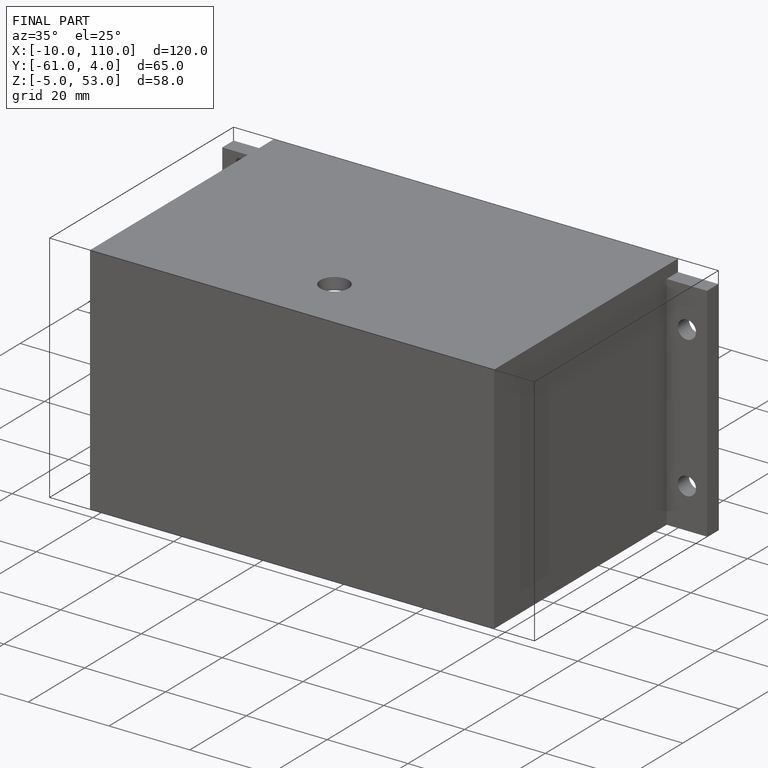
[diagram: finished part — iso view with bounding-box wireframe]
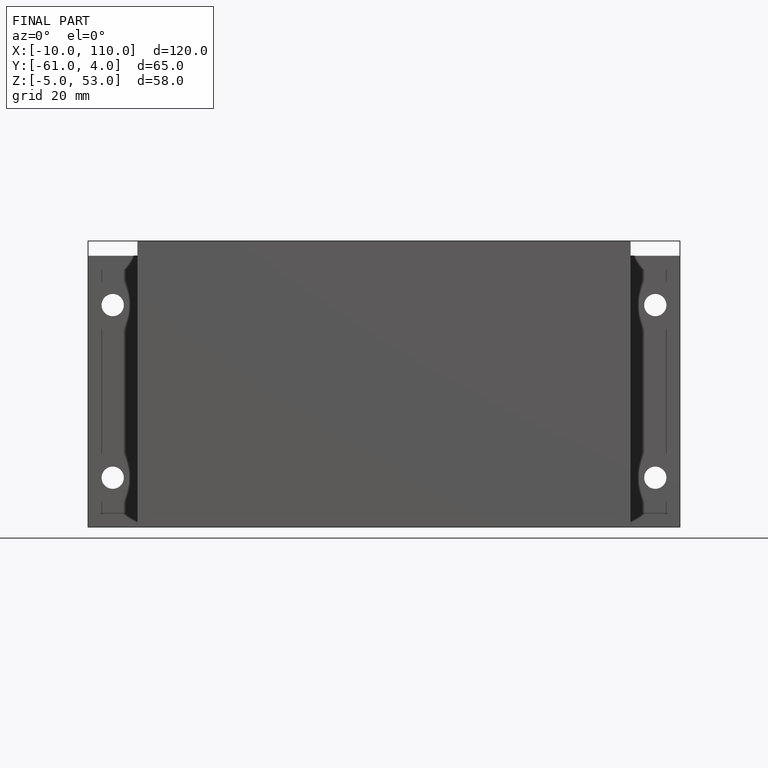
[diagram: finished part — front view with bounding-box wireframe]
